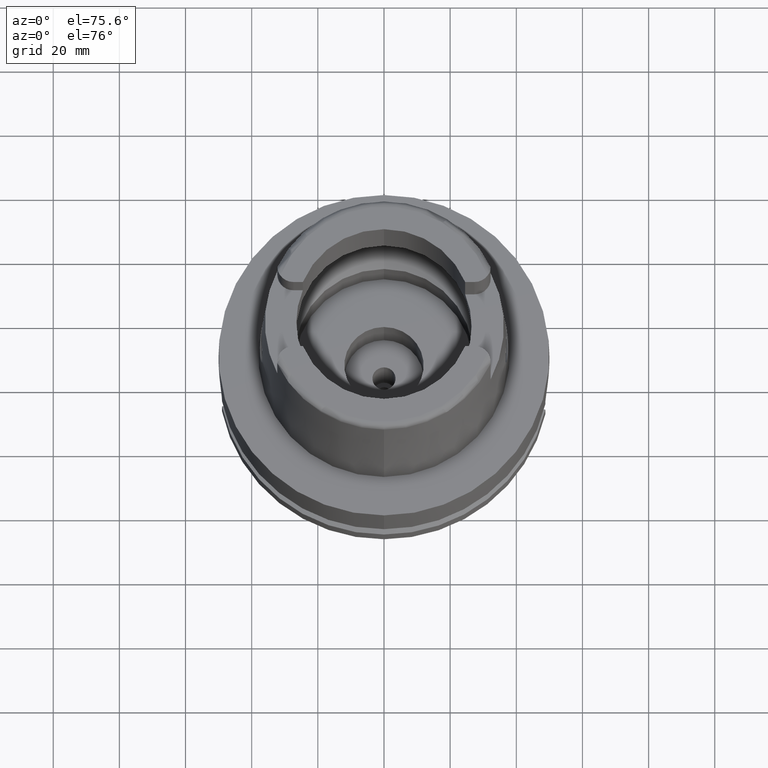
[diagram: clean part render]
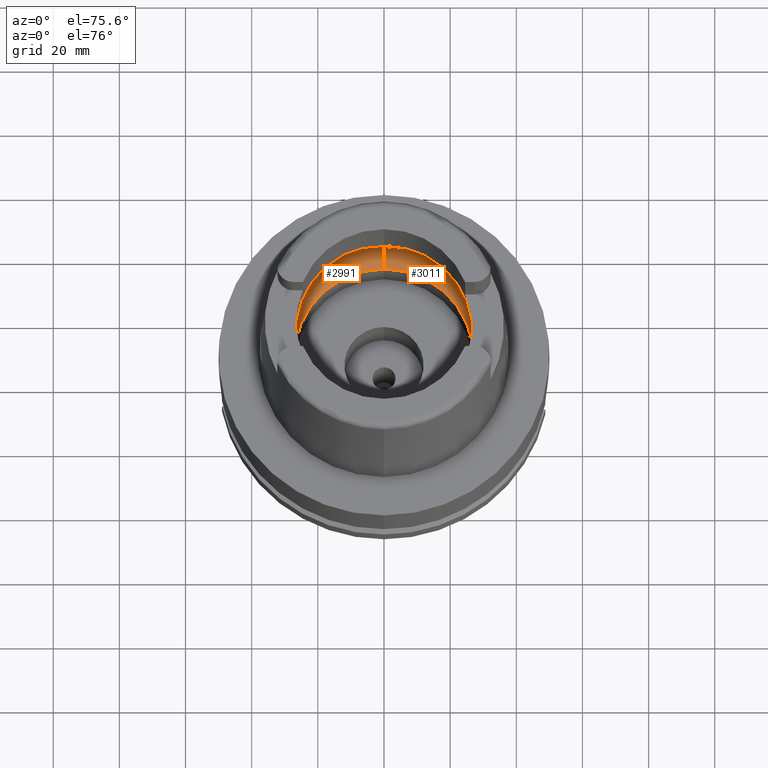
[diagram: same view with one multi-face feature highlighted, each face labeled with its STEP entity id]
A machine part, auxiliary view. The highlighted faces form ONE feature: a constant-radius fillet chain: 2 tangent blend faces with common blend radius 12 mm. The faces share edges in the B-rep.
Their STEP definitions:
[1] entity #3011 (Torus):
#664=CARTESIAN_POINT('',(0.E0,-1.95E1,9.496624327026E0));
#665=DIRECTION('',(-1.E0,0.E0,0.E0));
#666=DIRECTION('',(0.E0,-6.166666666667E-1,-7.872243785746E-1));
#667=AXIS2_PLACEMENT_3D('',#664,#665,#666);
#680=CARTESIAN_POINT('',(3.148971910754E1,0.E0,9.E0));
#681=CARTESIAN_POINT('',(3.148971910754E1,-2.740788803861E-1,9.E0));
#682=CARTESIAN_POINT('',(3.148416672116E1,-8.216211757853E-1,9.037605592661E0));
#683=CARTESIAN_POINT('',(3.145843230631E1,-1.626123048458E0,9.205188456316E0));
#684=CARTESIAN_POINT('',(3.142817539690E1,-2.140654942844E0,9.388263153628E0));
#685=CARTESIAN_POINT('',(3.140918884336E1,-2.390158196044E0,9.496624327026E0));
#690=CARTESIAN_POINT('',(0.E0,0.E0,9.496624327026E0));
#691=DIRECTION('',(0.E0,0.E0,-1.E0));
#692=DIRECTION('',(9.971171061384E-1,-7.587803796965E-2,0.E0));
#693=AXIS2_PLACEMENT_3D('',#690,#691,#692);
#698=CARTESIAN_POINT('',(0.E0,0.E0,4.993178413029E-2));
#699=DIRECTION('',(0.E0,0.E0,1.E0));
#700=DIRECTION('',(0.E0,-1.E0,0.E0));
#701=AXIS2_PLACEMENT_3D('',#698,#699,#700);
#706=CARTESIAN_POINT('',(0.E0,1.95E1,9.496624327026E0));
#707=DIRECTION('',(1.E0,0.E0,0.E0));
#708=DIRECTION('',(0.E0,6.166666666667E-1,-7.872243785746E-1));
#709=AXIS2_PLACEMENT_3D('',#706,#707,#708);
#714=CARTESIAN_POINT('',(0.E0,0.E0,9.496624327026E0));
#715=DIRECTION('',(0.E0,0.E0,-1.E0));
#716=DIRECTION('',(0.E0,1.E0,0.E0));
#717=AXIS2_PLACEMENT_3D('',#714,#715,#716);
#722=CARTESIAN_POINT('',(3.140918884336E1,2.390158196044E0,9.496624327026E0));
#723=CARTESIAN_POINT('',(3.142817524867E1,2.140656890753E0,9.388263999619E0));
#724=CARTESIAN_POINT('',(3.145843210997E1,1.626127805461E0,9.205189692890E0));
#725=CARTESIAN_POINT('',(3.148416676228E1,8.216206470477E-1,9.037605337893E0));
#726=CARTESIAN_POINT('',(3.148971910754E1,2.740786118115E-1,9.E0));
#727=CARTESIAN_POINT('',(3.148971910754E1,0.E0,9.E0));
#739=CARTESIAN_POINT('',(3.140918884336E1,-2.390158196044E0,9.496624327026E0));
#770=CARTESIAN_POINT('',(3.140918884336E1,2.390158196044E0,9.496624327026E0));
#2346=CARTESIAN_POINT('',(0.E0,-3.15E1,9.496624327026E0));
#2347=VERTEX_POINT('',#2346);
#2348=CARTESIAN_POINT('',(0.E0,3.15E1,9.496624327026E0));
#2349=VERTEX_POINT('',#2348);
#2354=VERTEX_POINT('',#739);
#2356=VERTEX_POINT('',#680);
#2357=VERTEX_POINT('',#770);
#2358=CARTESIAN_POINT('',(0.E0,2.69E1,4.993178413029E-2));
#2359=VERTEX_POINT('',#2358);
#2360=CARTESIAN_POINT('',(0.E0,-2.69E1,4.993178413029E-2));
#2361=VERTEX_POINT('',#2360);
#2992=CARTESIAN_POINT('',(0.E0,0.E0,9.496624327026E0));
#2993=DIRECTION('',(0.E0,0.E0,1.E0));
#2994=DIRECTION('',(0.E0,1.E0,0.E0));
#2995=AXIS2_PLACEMENT_3D('',#2992,#2993,#2994);
#2996=TOROIDAL_SURFACE('',#2995,1.95E1,1.2E1);
#2998=ORIENTED_EDGE('',*,*,#2997,.T.);
#3000=ORIENTED_EDGE('',*,*,#2999,.T.);
#3001=ORIENTED_EDGE('',*,*,#2986,.F.);
#3003=ORIENTED_EDGE('',*,*,#3002,.T.);
#3004=ORIENTED_EDGE('',*,*,#2982,.T.);
#3006=ORIENTED_EDGE('',*,*,#3005,.T.);
#3008=ORIENTED_EDGE('',*,*,#3007,.T.);
#3009=EDGE_LOOP('',(#2998,#3000,#3001,#3003,#3004,#3006,#3008));
#3010=FACE_OUTER_BOUND('',#3009,.F.);
#668=CIRCLE('',#667,1.2E1);
#686=B_SPLINE_CURVE_WITH_KNOTS('',3,(#680,#681,#682,#683,#684,#685),
.UNSPECIFIED.,.F.,.F.,(4,1,1,4),(0.E0,3.333333333333E-1,6.666666666667E-1,1.E0),
.UNSPECIFIED.);
#694=CIRCLE('',#693,3.15E1);
#702=CIRCLE('',#701,2.69E1);
#710=CIRCLE('',#709,1.2E1);
#718=CIRCLE('',#717,3.15E1);
#728=B_SPLINE_CURVE_WITH_KNOTS('',3,(#722,#723,#724,#725,#726,#727),
.UNSPECIFIED.,.F.,.F.,(4,1,1,4),(0.E0,3.333333333333E-1,6.666666666667E-1,1.E0),
.UNSPECIFIED.);
#2982=EDGE_CURVE('',#2359,#2349,#710,.T.);
#2986=EDGE_CURVE('',#2361,#2347,#668,.T.);
#2997=EDGE_CURVE('',#2356,#2354,#686,.T.);
#2999=EDGE_CURVE('',#2354,#2347,#694,.T.);
#3002=EDGE_CURVE('',#2361,#2359,#702,.T.);
#3005=EDGE_CURVE('',#2349,#2357,#718,.T.);
#3007=EDGE_CURVE('',#2357,#2356,#728,.T.);
#3011=ADVANCED_FACE('',(#3010),#2996,.F.);
[2] entity #2991 (Torus):
#584=CARTESIAN_POINT('',(-3.140918884336E1,-2.390158196044E0,9.496624327026E0));
#628=CARTESIAN_POINT('',(-3.140918884336E1,-2.390158196044E0,9.496624327026E0));
#629=CARTESIAN_POINT('',(-3.142817542711E1,-2.140654545826E0,9.388262981200E0));
#630=CARTESIAN_POINT('',(-3.145843235321E1,-1.626122075919E0,9.205188161180E0));
#631=CARTESIAN_POINT('',(-3.148416673975E1,-8.216201230801E-1,
9.037605466957E0));
#632=CARTESIAN_POINT('',(-3.148971910754E1,-2.740784276412E-1,9.E0));
#633=CARTESIAN_POINT('',(-3.148971910754E1,0.E0,9.E0));
#638=CARTESIAN_POINT('',(-3.148971910754E1,0.E0,9.E0));
#639=CARTESIAN_POINT('',(-3.148971910754E1,2.740790644793E-1,9.E0));
#640=CARTESIAN_POINT('',(-3.148416674375E1,8.216216997619E-1,9.037605463221E0));
#641=CARTESIAN_POINT('',(-3.145843206264E1,1.626128788313E0,9.205189990750E0));
#642=CARTESIAN_POINT('',(-3.142817521813E1,2.140657291993E0,9.388264173881E0));
#643=CARTESIAN_POINT('',(-3.140918884336E1,2.390158196044E0,9.496624327026E0));
#648=CARTESIAN_POINT('',(0.E0,0.E0,9.496624327026E0));
#649=DIRECTION('',(0.E0,0.E0,-1.E0));
#650=DIRECTION('',(-9.971171061384E-1,7.587803796965E-2,0.E0));
#651=AXIS2_PLACEMENT_3D('',#648,#649,#650);
#656=CARTESIAN_POINT('',(0.E0,0.E0,4.993178413029E-2));
#657=DIRECTION('',(0.E0,0.E0,1.E0));
#658=DIRECTION('',(0.E0,1.E0,0.E0));
#659=AXIS2_PLACEMENT_3D('',#656,#657,#658);
#664=CARTESIAN_POINT('',(0.E0,-1.95E1,9.496624327026E0));
#665=DIRECTION('',(-1.E0,0.E0,0.E0));
#666=DIRECTION('',(0.E0,-6.166666666667E-1,-7.872243785746E-1));
#667=AXIS2_PLACEMENT_3D('',#664,#665,#666);
#672=CARTESIAN_POINT('',(0.E0,0.E0,9.496624327026E0));
#673=DIRECTION('',(0.E0,0.E0,-1.E0));
#674=DIRECTION('',(0.E0,-1.E0,0.E0));
#675=AXIS2_PLACEMENT_3D('',#672,#673,#674);
#706=CARTESIAN_POINT('',(0.E0,1.95E1,9.496624327026E0));
#707=DIRECTION('',(1.E0,0.E0,0.E0));
#708=DIRECTION('',(0.E0,6.166666666667E-1,-7.872243785746E-1));
#709=AXIS2_PLACEMENT_3D('',#706,#707,#708);
#2345=VERTEX_POINT('',#584);
#2346=CARTESIAN_POINT('',(0.E0,-3.15E1,9.496624327026E0));
#2347=VERTEX_POINT('',#2346);
#2348=CARTESIAN_POINT('',(0.E0,3.15E1,9.496624327026E0));
#2349=VERTEX_POINT('',#2348);
#2350=CARTESIAN_POINT('',(-3.140918884336E1,2.390158196044E0,9.496624327026E0));
#2351=VERTEX_POINT('',#2350);
#2352=CARTESIAN_POINT('',(-3.148971910754E1,0.E0,9.E0));
#2353=VERTEX_POINT('',#2352);
#2358=CARTESIAN_POINT('',(0.E0,2.69E1,4.993178413029E-2));
#2359=VERTEX_POINT('',#2358);
#2360=CARTESIAN_POINT('',(0.E0,-2.69E1,4.993178413029E-2));
#2361=VERTEX_POINT('',#2360);
#2974=CARTESIAN_POINT('',(0.E0,0.E0,9.496624327026E0));
#2975=DIRECTION('',(0.E0,0.E0,1.E0));
#2976=DIRECTION('',(0.E0,1.E0,0.E0));
#2977=AXIS2_PLACEMENT_3D('',#2974,#2975,#2976);
#2978=TOROIDAL_SURFACE('',#2977,1.95E1,1.2E1);
#2979=ORIENTED_EDGE('',*,*,#2955,.T.);
#2980=ORIENTED_EDGE('',*,*,#2966,.T.);
#2981=ORIENTED_EDGE('',*,*,#2937,.T.);
#2983=ORIENTED_EDGE('',*,*,#2982,.F.);
#2985=ORIENTED_EDGE('',*,*,#2984,.T.);
#2987=ORIENTED_EDGE('',*,*,#2986,.T.);
#2988=ORIENTED_EDGE('',*,*,#2930,.T.);
#2989=EDGE_LOOP('',(#2979,#2980,#2981,#2983,#2985,#2987,#2988));
#2990=FACE_OUTER_BOUND('',#2989,.F.);
#634=B_SPLINE_CURVE_WITH_KNOTS('',3,(#628,#629,#630,#631,#632,#633),
.UNSPECIFIED.,.F.,.F.,(4,1,1,4),(0.E0,3.333333333333E-1,6.666666666667E-1,1.E0),
.UNSPECIFIED.);
#644=B_SPLINE_CURVE_WITH_KNOTS('',3,(#638,#639,#640,#641,#642,#643),
.UNSPECIFIED.,.F.,.F.,(4,1,1,4),(0.E0,3.333333333333E-1,6.666666666667E-1,1.E0),
.UNSPECIFIED.);
#652=CIRCLE('',#651,3.15E1);
#660=CIRCLE('',#659,2.69E1);
#668=CIRCLE('',#667,1.2E1);
#676=CIRCLE('',#675,3.15E1);
#710=CIRCLE('',#709,1.2E1);
#2930=EDGE_CURVE('',#2347,#2345,#676,.T.);
#2937=EDGE_CURVE('',#2351,#2349,#652,.T.);
#2955=EDGE_CURVE('',#2345,#2353,#634,.T.);
#2966=EDGE_CURVE('',#2353,#2351,#644,.T.);
#2982=EDGE_CURVE('',#2359,#2349,#710,.T.);
#2984=EDGE_CURVE('',#2359,#2361,#660,.T.);
#2986=EDGE_CURVE('',#2361,#2347,#668,.T.);
#2991=ADVANCED_FACE('',(#2990),#2978,.F.);